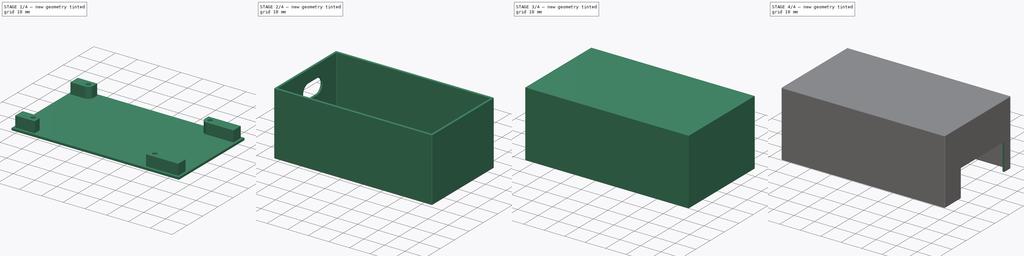
[diagram: build sequence overview — one tinted view per stage of 4, left to right]
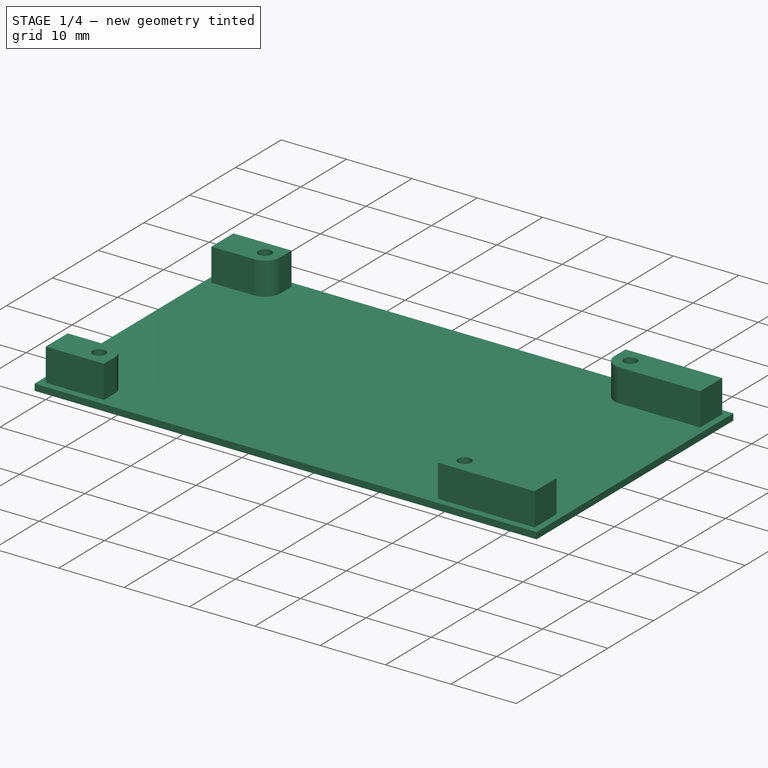
[diagram: stage 1 of 4 — iso view after this stage's code; geometry added in this stage tinted green]
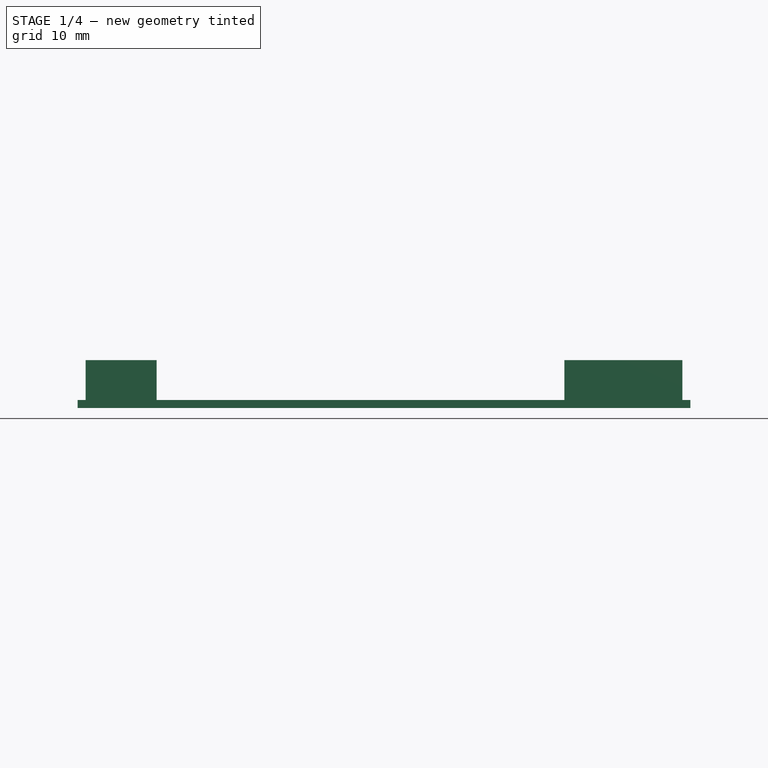
[diagram: stage 1 of 4 — front view after this stage's code; geometry added in this stage tinted green]
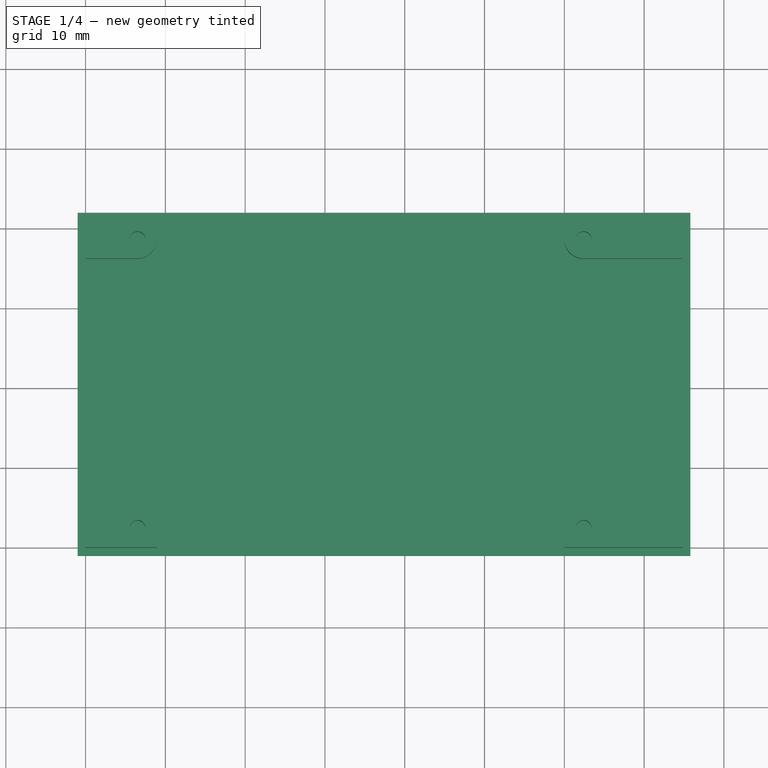
[diagram: stage 1 of 4 — top view after this stage's code; geometry added in this stage tinted green]
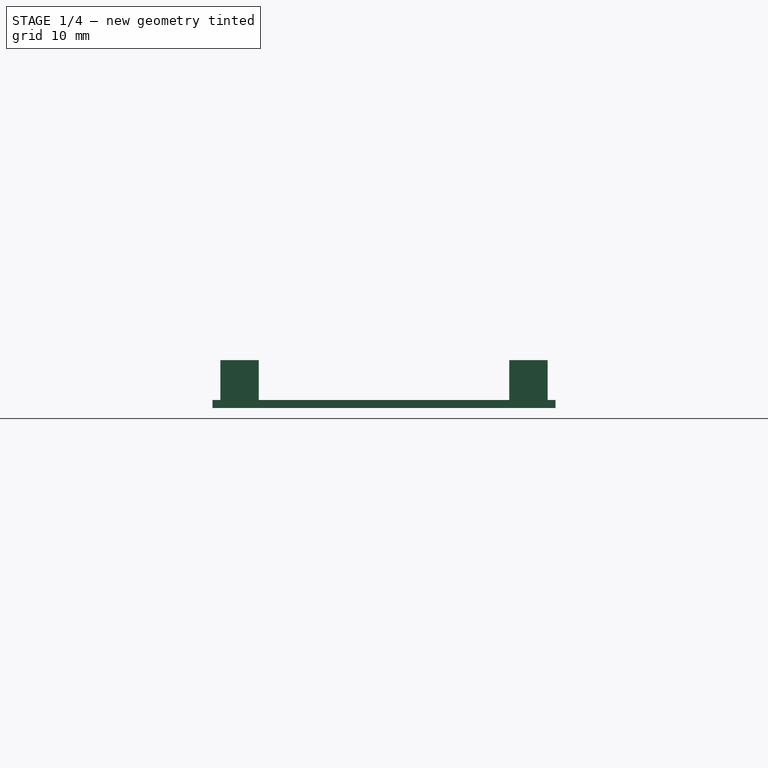
[diagram: stage 1 of 4 — right view after this stage's code; geometry added in this stage tinted green]
FCSTD DOCUMENT  (FreeCAD 0.22R38459 (Git))
Label: pcb_led_rf
License: All rights reserved
LicenseURL: https://en.wikipedia.org/wiki/All_rights_reserved
objects: Sketcher::SketchObject×8, PartDesign::Pad×5, PartDesign::Pocket×5, PartDesign::Fillet×2, PartDesign::SubShapeBinder×2, PartDesign::Body×2, App::Part×2, Spreadsheet::Sheet×1, PartDesign::ShapeBinder×1
note: 57 computed .brp shape members not serialized (recipe doc carries the construction recipe); baked Part::Feature solids carry a one-line shape summary decoded from their .brp

FEATURE [Sketcher::SketchObject] Sketch  label="components"
  ArcFitTolerance = 0
  AttachmentSupport = -> [XY_Plane001]
  FullyConstrained = true
  MakeInternals = false
  MapMode = 5
  expr: Constraints[13] = <<config>>.thickness
  expr: Constraints[14] = <<config>>.thickness
  expr: Constraints[15] = <<config>>.thickness
  expr: Constraints[16] = <<config>>.thickness
  expr: Constraints[34] = <<config>>.cable_space
  sketch-geometry (12):
    g0: LineSegment StartX=74.8 StartY=0 StartZ=0 EndX=74.8 EndY=41 EndZ=0
    g1: LineSegment StartX=74.8 StartY=41 StartZ=0 EndX=0 EndY=41 EndZ=0
    g2: LineSegment StartX=0 StartY=41 StartZ=0 EndX=0 EndY=0 EndZ=0
    g3: LineSegment StartX=75.8 StartY=42 StartZ=0 EndX=-1 EndY=42 EndZ=0
    g4: LineSegment StartX=-1 StartY=42 StartZ=0 EndX=-1 EndY=-1 EndZ=0
    g5: LineSegment StartX=-1 StartY=-1 StartZ=0 EndX=75.8 EndY=-1 EndZ=0
    g6: LineSegment StartX=75.8 StartY=-1 StartZ=0 EndX=75.8 EndY=42 EndZ=0
    g7: LineSegment StartX=74.8 StartY=0 StartZ=0 EndX=0 EndY=0 EndZ=0
    g8: Circle CenterX=6.5 CenterY=38.6 CenterZ=0 NormalX=0 NormalY=0 NormalZ=1 AngleXU=0 Radius=2.4
    g9: Circle CenterX=6.5 CenterY=2.4 CenterZ=0 NormalX=0 NormalY=0 NormalZ=1 AngleXU=0 Radius=2.4
    g10: Circle CenterX=62.4 CenterY=38.6 CenterZ=0 NormalX=0 NormalY=0 NormalZ=1 AngleXU=0 Radius=2.4
    g11: Circle CenterX=62.4 CenterY=2.4 CenterZ=0 NormalX=0 NormalY=0 NormalZ=1 AngleXU=0 Radius=2.4
  constraints (36):
    c: Coincident(g0,g1)
    c: Coincident(g1,g2)
    c: Horizontal(g1)
    c: Vertical(g0)
    c: Vertical(g2)
    c: Coincident(g3,g4)
    c: Coincident(g4,g5)
    c: Coincident(g5,g6)
    c: Coincident(g6,g3)
    c: Horizontal(g3)
    c: Horizontal(g5)
    c: Vertical(g4)
    c: Vertical(g6)
    c: DistanceY(g4,g2) = 1
    c: DistanceY(g1,g3) = 1
    c: DistanceX(g4,g2) = 1
    c: DistanceX(g0,g5) = 1
    c: Coincident(g7,g2)
    c: Coincident(g7,g0)
    c: Horizontal(g7)
    c: Coincident(g-1,g2)
    c: Distance(g8,g2) = 6.5
    c: Distance(g8,g1) = 2.4
    c: Equal(g8,g10)
    c: Equal(g8,g11)
    c: Equal(g8,g9)
    c: Horizontal(g8,g10)
    c: Vertical(g10,g11)
    c: Horizontal(g9,g11)
    c: Vertical(g8,g9)
    c: DistanceX(g9,g11) = 55.9
    c: DistanceY(g11,g10) = 36.2
    c: Tangent(g8,g1)
    c: Diameter(g8) = 4.8
    c: Distance(g11,g0) = 10
    c: Tangent(g7,g11)
FEATURE [Spreadsheet::Sheet] Spreadsheet  label="config"
  cells = A2='thickness; B2(thickness)==1 mm; A3='cable_space; B3(cable_space)==10 mm; A4='inside_z; B4(inside_z)==30 mm; A5='slack; B5(slack)==0.5 mm
FEATURE [PartDesign::Pad] Pad  label="base"
  Direction = (0,0,1)
  Length = 1
  Length2 = 10
  Profile = -> Sketch [Edge6,Edge7,Edge8,Edge5]
  ReferenceAxis = -> Sketch [N_Axis]
  Refine = true
  Reversed = true
  Suppressed = false
  Type = 0
  expr: Length = <<config>>.thickness
FEATURE [Sketcher::SketchObject] Sketch001
  ArcFitTolerance = 1e-06
  AttachmentSupport = -> [Pad]
  ExternalGeometry = -> [Sketch]
  FullyConstrained = true
  MakeInternals = false
  MapMode = 5
  sketch-geometry (20):
    g0: LineSegment StartX=8.9 StartY=2.4 StartZ=0 EndX=8.9 EndY=0 EndZ=0
    g1: LineSegment StartX=8.9 StartY=0 StartZ=0 EndX=0 EndY=0 EndZ=0
    g2: LineSegment StartX=0 StartY=0 StartZ=0 EndX=0 EndY=4.8 EndZ=0
    g3: LineSegment StartX=0 StartY=4.8 StartZ=0 EndX=6.5 EndY=4.8 EndZ=0
    g4: ArcOfCircle CenterX=6.5 CenterY=2.4 CenterZ=0 NormalX=0 NormalY=0 NormalZ=1 AngleXU=0 Radius=2.4 StartAngle=1e-16 EndAngle=1.5708
    g5: LineSegment StartX=60 StartY=2.4 StartZ=0 EndX=60 EndY=0 EndZ=0
    g6: LineSegment StartX=60 StartY=0 StartZ=0 EndX=74.8 EndY=0 EndZ=0
    g7: LineSegment StartX=74.8 StartY=0 StartZ=0 EndX=74.8 EndY=4.8 EndZ=0
    g8: LineSegment StartX=74.8 StartY=4.8 StartZ=0 EndX=62.4 EndY=4.8 EndZ=0
    g9: ArcOfCircle CenterX=62.4 CenterY=2.4 CenterZ=0 NormalX=0 NormalY=0 NormalZ=1 AngleXU=0 Radius=2.4 StartAngle=1.5708 EndAngle=3.14159
    g10: LineSegment StartX=60 StartY=38.6 StartZ=0 EndX=60 EndY=41 EndZ=0
    g11: LineSegment StartX=60 StartY=41 StartZ=0 EndX=74.8 EndY=41 EndZ=0
    g12: LineSegment StartX=74.8 StartY=41 StartZ=0 EndX=74.8 EndY=36.2 EndZ=0
    g13: LineSegment StartX=74.8 StartY=36.2 StartZ=0 EndX=62.4 EndY=36.2 EndZ=0
    g14: ArcOfCircle CenterX=62.4 CenterY=38.6 CenterZ=0 NormalX=0 NormalY=0 NormalZ=1 AngleXU=0 Radius=2.4 StartAngle=3.14159 EndAngle=4.71239
    g15: LineSegment StartX=6.5 StartY=36.2 StartZ=0 EndX=0 EndY=36.2 EndZ=0
    g16: LineSegment StartX=0 StartY=36.2 StartZ=0 EndX=0 EndY=41 EndZ=0
    g17: LineSegment StartX=0 StartY=41 StartZ=0 EndX=8.9 EndY=41 EndZ=0
    g18: LineSegment StartX=8.9 StartY=41 StartZ=0 EndX=8.9 EndY=38.6 EndZ=0
    g19: ArcOfCircle CenterX=6.5 CenterY=38.6 CenterZ=0 NormalX=0 NormalY=0 NormalZ=1 AngleXU=0 Radius=2.4 StartAngle=4.71239 EndAngle=6.28319
  constraints (56):
    c: PointOnObject(g0,g-1)
    c: Coincident(g0,g1)
    c: Coincident(g1,g-1)
    c: Coincident(g1,g2)
    c: PointOnObject(g2,g-2)
    c: Coincident(g2,g3)
    c: Horizontal(g3)
    c: Vertical(g0)
    c: Coincident(g4,g-6)
    c: Coincident(g4,g3)
    c: Coincident(g4,g0)
    c: Vertical(g4,g3)
    c: Horizontal(g4,g0)
    c: PointOnObject(g3,g-6)
    c: Vertical(g5)
    c: Coincident(g5,g6)
    c: Horizontal(g6)
    c: Coincident(g6,g7)
    c: Vertical(g7)
    c: Coincident(g7,g8)
    c: Horizontal(g8)
    c: Coincident(g9,g-5)
    c: Coincident(g9,g5)
    c: Coincident(g9,g8)
    c: Vertical(g9,g8)
    c: Horizontal(g9,g5)
    c: Coincident(g-7,g6)
    c: PointOnObject(g8,g-5)
    c: Vertical(g10)
    c: Coincident(g10,g11)
    c: Coincident(g11,g-7)
    c: Coincident(g11,g12)
    c: Coincident(g12,g13)
    c: Horizontal(g13)
    c: Coincident(g14,g-4)
    c: Coincident(g14,g10)
    c: Coincident(g14,g13)
    c: Horizontal(g11)
    c: Vertical(g12)
    c: Horizontal(g10,g14)
    c: Vertical(g13,g14)
    c: PointOnObject(g13,g-4)
    c: Horizontal(g15)
    c: Coincident(g15,g16)
    c: Vertical(g16)
    c: Coincident(g16,g17)
    c: Horizontal(g17)
    c: Coincident(g17,g18)
    c: Vertical(g18)
    c: Coincident(g19,g-3)
    c: Coincident(g19,g15)
    c: Coincident(g19,g18)
    c: Coincident(g16,g-8)
    c: Horizontal(g19,g18)
    c: Vertical(g19,g15)
    c: PointOnObject(g15,g-3)
FEATURE [PartDesign::Pad] Pad001  label="PCB_holder"
  BaseFeature = -> Pad
  Direction = (0,0,1)
  Length = 5
  Length2 = 10
  Profile = -> Sketch001
  ReferenceAxis = -> Sketch001 [N_Axis]
  Refine = true
  Suppressed = false
  Type = 0
FEATURE [Sketcher::SketchObject] Sketch002
  ArcFitTolerance = 1e-06
  AttachmentSupport = -> [Pad001]
  ExternalGeometry = -> [Sketch]
  FullyConstrained = true
  MakeInternals = false
  MapMode = 5
  Placement = pos=(0,0,5) rot=(0,0,1;0rad)
  sketch-geometry (4):
    g0: Circle CenterX=6.5 CenterY=38.6 CenterZ=0 NormalX=0 NormalY=0 NormalZ=1 AngleXU=0 Radius=1
    g1: Circle CenterX=62.4 CenterY=38.6 CenterZ=0 NormalX=0 NormalY=0 NormalZ=1 AngleXU=0 Radius=1
    g2: Circle CenterX=6.5 CenterY=2.4 CenterZ=0 NormalX=0 NormalY=0 NormalZ=1 AngleXU=0 Radius=1
    g3: Circle CenterX=62.4 CenterY=2.4 CenterZ=0 NormalX=0 NormalY=0 NormalZ=1 AngleXU=0 Radius=1
  constraints (8):
    c: Coincident(g0,g-3)
    c: Coincident(g1,g-6)
    c: Diameter(g0) = 2
    c: Equal(g0,g1)
    c: Equal(g0,g2)
    c: Equal(g0,g3)
    c: Coincident(g-4,g2)
    c: Coincident(g-5,g3)
FEATURE [PartDesign::Pocket] Pocket
  BaseFeature = -> Pad001
  Direction = (0,0,-1)
  Length = 5.5
  Length2 = 5
  Profile = -> Sketch002
  ReferenceAxis = -> Sketch002 [N_Axis]
  Refine = true
  Suppressed = false
  Type = 0
  expr: Length = <<PCB_holder>>.Length + <<config>>.thickness / 2
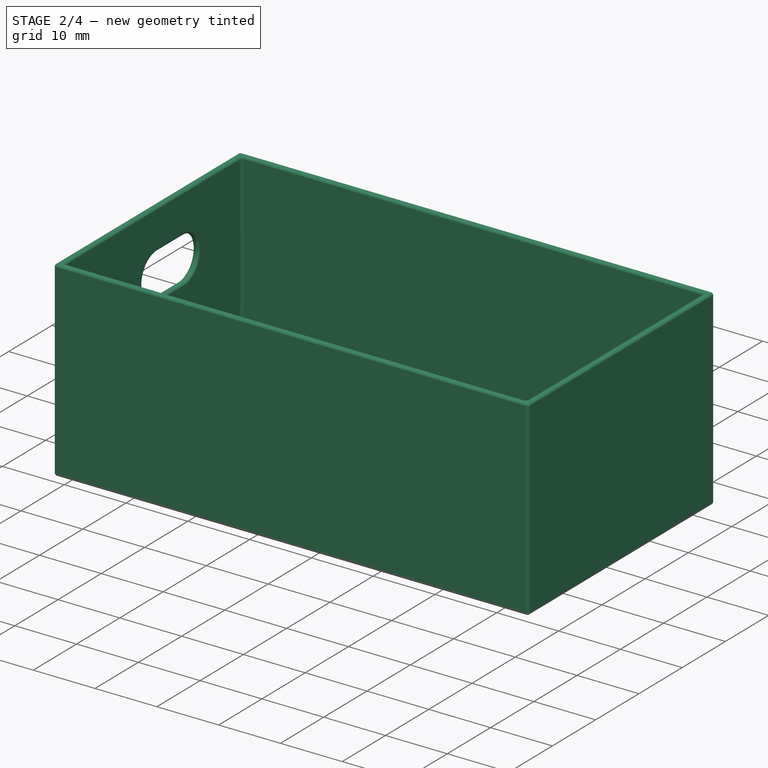
[diagram: stage 2 of 4 — iso view after this stage's code; geometry added in this stage tinted green]
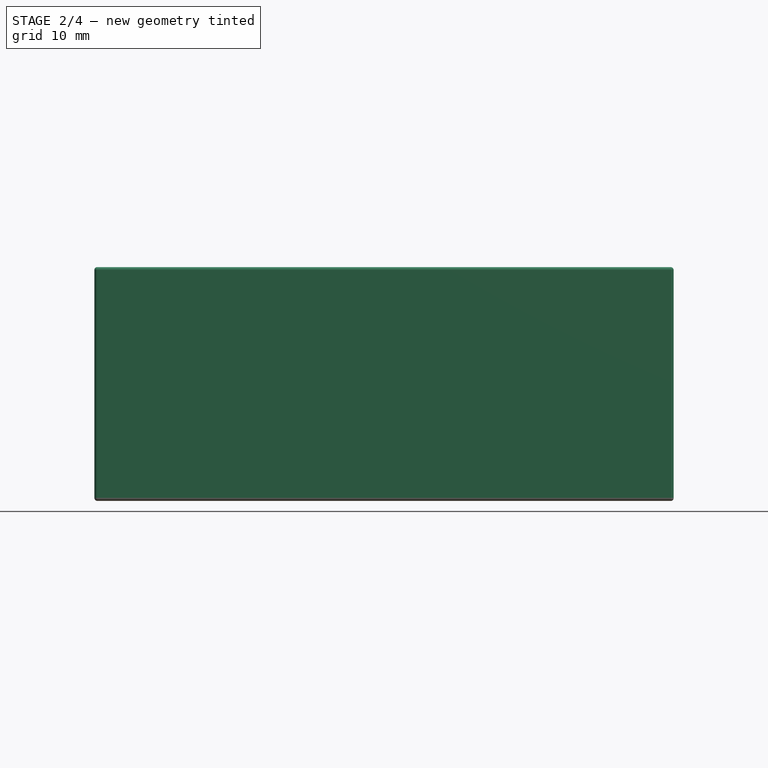
[diagram: stage 2 of 4 — front view after this stage's code; geometry added in this stage tinted green]
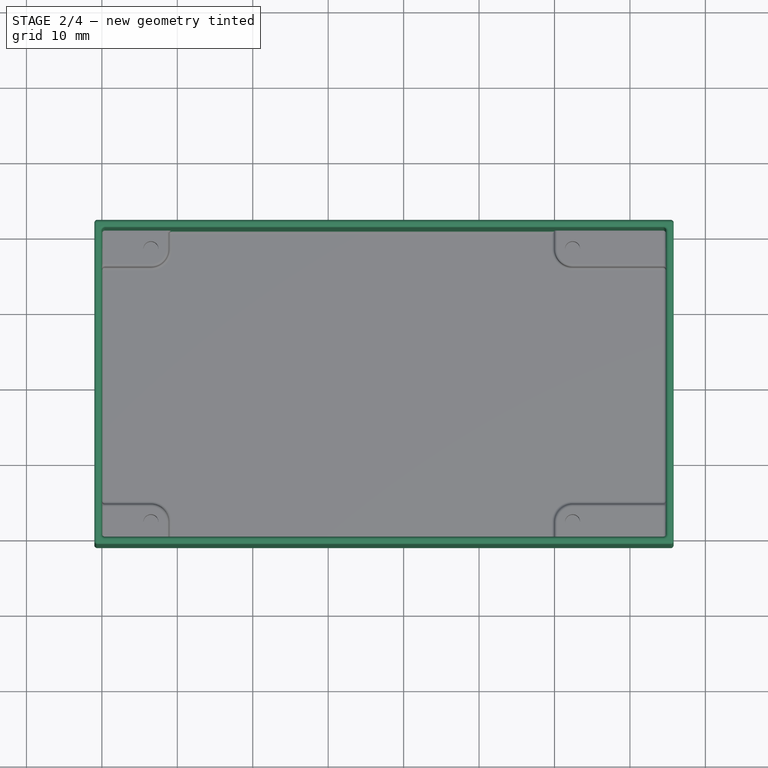
[diagram: stage 2 of 4 — top view after this stage's code; geometry added in this stage tinted green]
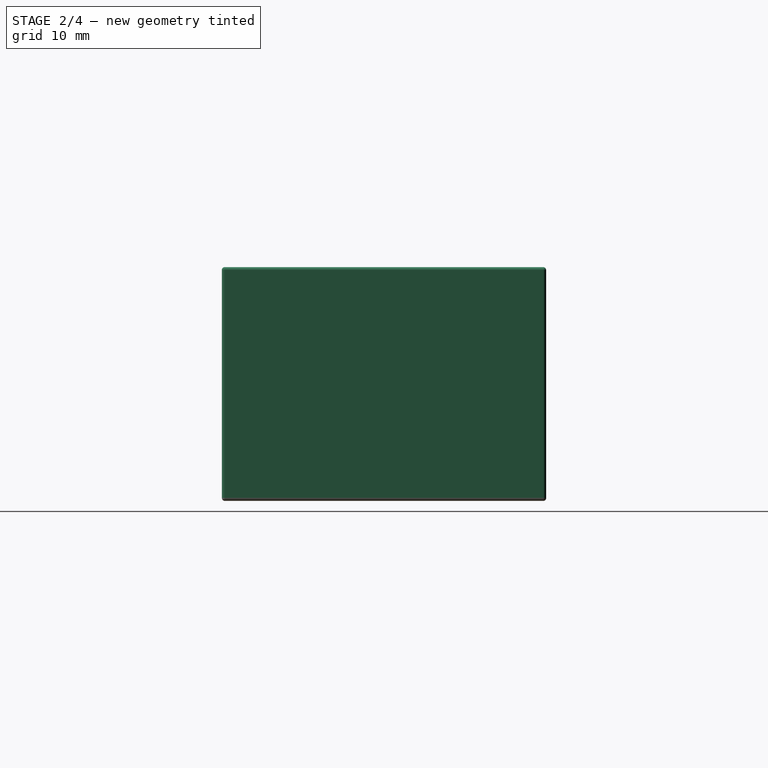
[diagram: stage 2 of 4 — right view after this stage's code; geometry added in this stage tinted green]
FEATURE [PartDesign::Pad] Pad002  label="walls"
  BaseFeature = -> Pocket
  Direction = (0,0,1)
  Length = 30
  Length2 = 10
  Profile = -> Sketch [Edge7,Edge4,Edge3,Edge6,Edge2,Edge5,Edge1,Edge8]
  ReferenceAxis = -> Sketch [N_Axis]
  Refine = true
  Suppressed = false
  Type = 0
  expr: Length = <<config>>.inside_z
FEATURE [Sketcher::SketchObject] Sketch003
  ArcFitTolerance = 1e-06
  AttachmentSupport = -> [Pad002]
  ExternalGeometry = -> [Sketch]
  FullyConstrained = true
  MakeInternals = false
  MapMode = 5
  Placement = pos=(-1,0,0) rot=(0.57735,-0.57735,-0.57735;2.0944rad)
  sketch-geometry (9):
    g0: ArcOfCircle CenterX=-27.6 CenterY=20 CenterZ=0 NormalX=0 NormalY=0 NormalZ=1 AngleXU=0 Radius=3.5 StartAngle=1.5708 EndAngle=4.71239
    g1: ArcOfCircle CenterX=-21.6 CenterY=20 CenterZ=0 NormalX=0 NormalY=0 NormalZ=1 AngleXU=0 Radius=3.5 StartAngle=4.71239 EndAngle=7.85398
    g2: LineSegment StartX=-27.6 StartY=23.5 StartZ=0 EndX=-21.6 EndY=23.5 EndZ=0
    g3: LineSegment StartX=-27.6 StartY=16.5 StartZ=0 EndX=-21.6 EndY=16.5 EndZ=0
    g4: LineSegment [constr] StartX=-24.6 StartY=20 StartZ=0 EndX=-24.6 EndY=0 EndZ=0
    g5: LineSegment [constr] StartX=-27.6 StartY=20 StartZ=0 EndX=-24.6 EndY=20 EndZ=0
    g6: LineSegment [constr] StartX=-24.6 StartY=20 StartZ=0 EndX=-21.6 EndY=20 EndZ=0
    g7: GeomPoint [constr] X=-31.1 Y=20 Z=0
    g8: GeomPoint [constr] X=-18.1 Y=20 Z=0
  constraints (24):
    c: Tangent(g0,g2) = 1.5708
    c: Tangent(g0,g3) = -1.5708
    c: Tangent(g1,g2) = 1.5708
    c: Tangent(g1,g3) = -1.5708
    c: Equal(g0,g1)
    c: Horizontal(g3)
    c: PointOnObject(g4,g-1)
    c: Vertical(g4)
    c: Coincident(g5,g0)
    c: PointOnObject(g5,g4)
    c: Horizontal(g5)
    c: PointOnObject(g6,g4)
    c: Coincident(g6,g1)
    c: Horizontal(g6)
    c: Equal(g5,g6)
    c: PointOnObject(g4,g6)
    c: Distance(g-3,g4) = 16.4
    c: Distance(g3,g2) = 7
    c: PointOnObject(g7,g0)
    c: PointOnObject(g8,g1)
    c: Horizontal(g7,g0)
    c: Horizontal(g1,g8)
    c: DistanceX(g7,g8) = 13
    c: DistanceY(g4,g4) = 20
FEATURE [PartDesign::Pocket] Pocket001  label="usb_hole"
  BaseFeature = -> Pad002
  Direction = (1,0,0)
  Length = 5
  Length2 = 5
  Profile = -> Sketch003
  ReferenceAxis = -> Sketch003 [N_Axis]
  Refine = true
  Suppressed = false
  Type = 2
FEATURE [PartDesign::Fillet] Fillet
  Base = -> Pocket001 [Face17,Face14,Face4,Face6,Face26,Face31,Face24,Face5,Face1,Face2,Face3,Face12,Face28,Face30,Face32]
  BaseFeature = -> Pocket001
  Radius = 0.4
  Refine = true
  SupportTransform = false
  Suppressed = false
  UseAllEdges = false
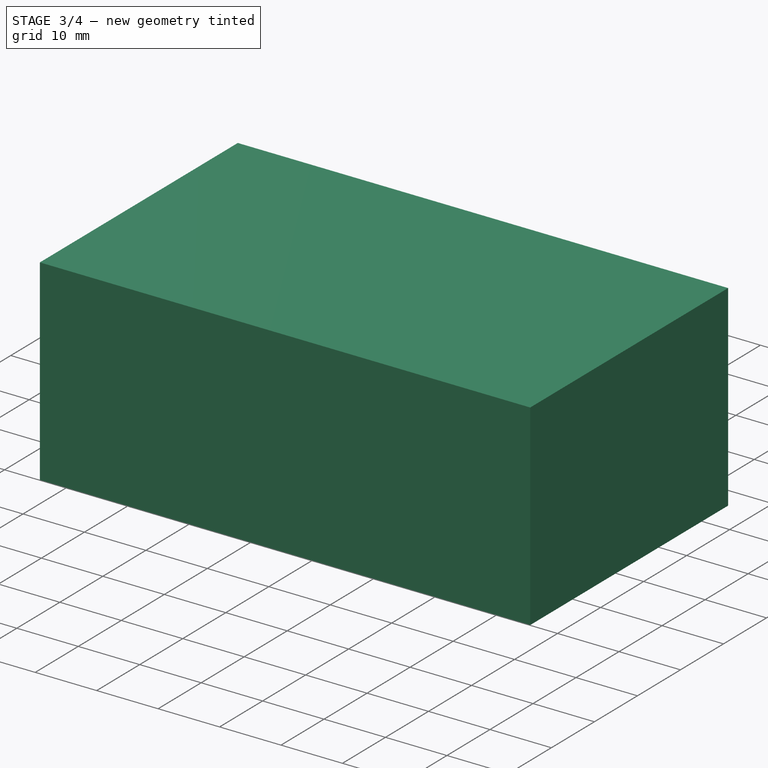
[diagram: stage 3 of 4 — iso view after this stage's code; geometry added in this stage tinted green]
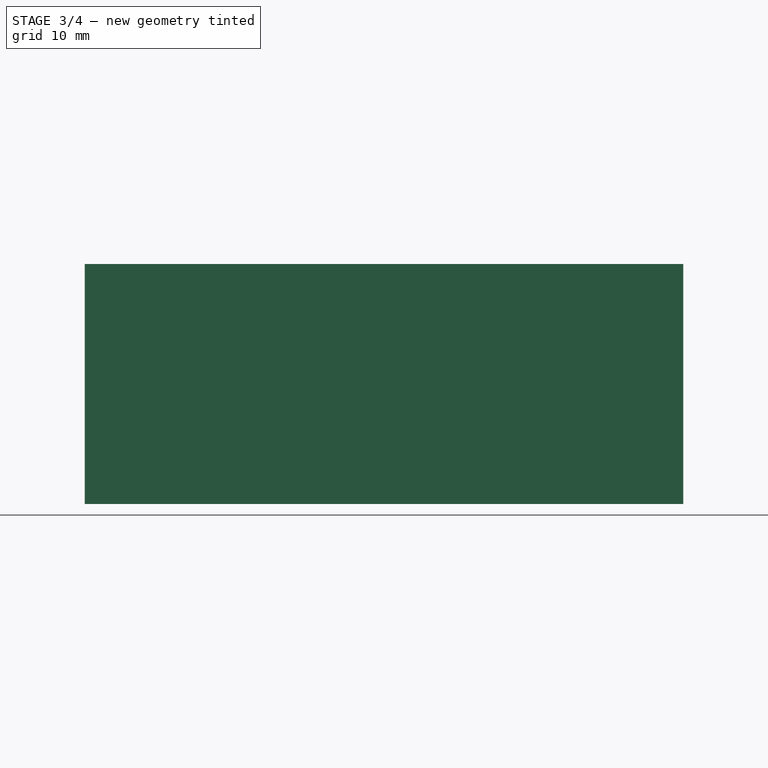
[diagram: stage 3 of 4 — front view after this stage's code; geometry added in this stage tinted green]
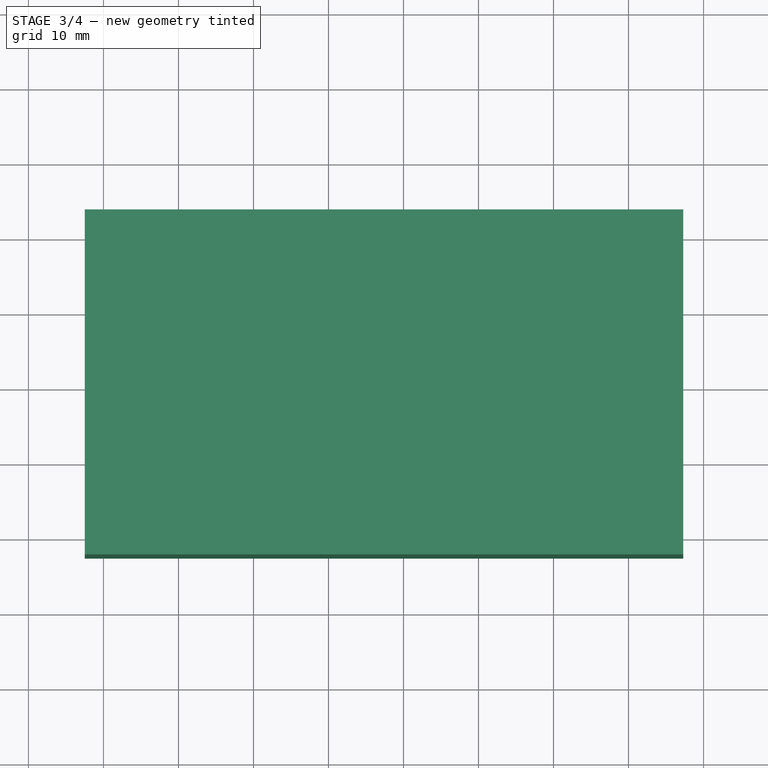
[diagram: stage 3 of 4 — top view after this stage's code; geometry added in this stage tinted green]
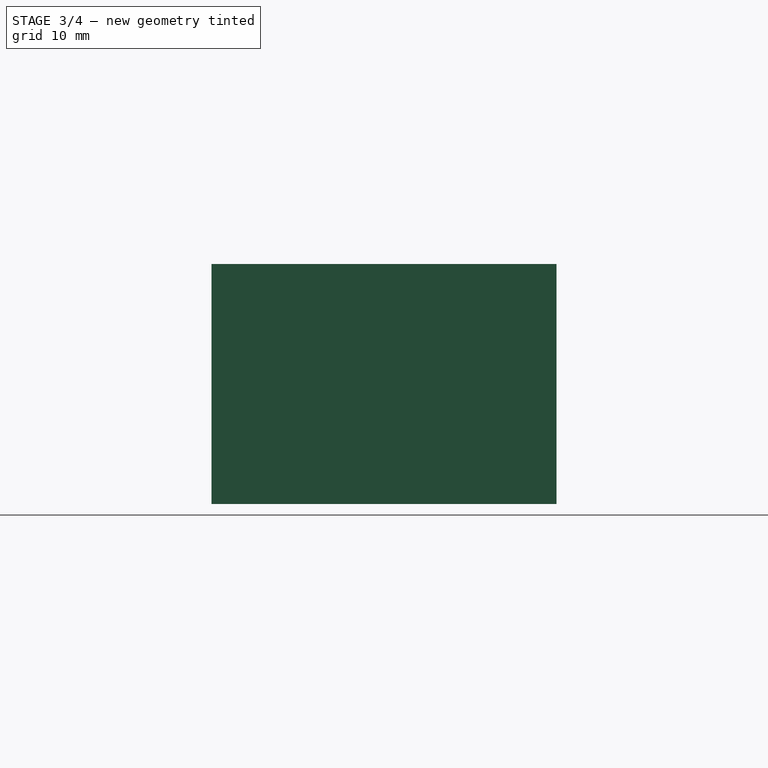
[diagram: stage 3 of 4 — right view after this stage's code; geometry added in this stage tinted green]
FEATURE [PartDesign::ShapeBinder] ShapeBinder
  Placement = pos=(0,0,30) rot=(0,0,1;0rad)
  Support = -> [Pocket001]
  TraceSupport = false
FEATURE [Sketcher::SketchObject] Sketch004
  ArcFitTolerance = 1e-06
  AttachmentSupport = -> [ShapeBinder]
  ExternalGeometry = -> [ShapeBinder]
  FullyConstrained = true
  MakeInternals = false
  MapMode = 5
  Placement = pos=(0,0,30) rot=(0,0,1;0rad)
  expr: Constraints[10] = <<config>>.slack
  expr: Constraints[11] = <<config>>.slack
  expr: Constraints[20] = <<config>>.thickness
  expr: Constraints[21] = <<config>>.thickness
  expr: Constraints[22] = <<config>>.thickness
  expr: Constraints[23] = <<config>>.thickness
  expr: Constraints[8] = <<config>>.slack
  expr: Constraints[9] = <<config>>.slack
  sketch-geometry (8):
    g0: LineSegment StartX=76.3 StartY=42.5 StartZ=0 EndX=-1.5 EndY=42.5 EndZ=0
    g1: LineSegment StartX=-1.5 StartY=42.5 StartZ=0 EndX=-1.5 EndY=-1.5 EndZ=0
    g2: LineSegment StartX=-1.5 StartY=-1.5 StartZ=0 EndX=76.3 EndY=-1.5 EndZ=0
    g3: LineSegment StartX=76.3 StartY=-1.5 StartZ=0 EndX=76.3 EndY=42.5 EndZ=0
    g4: LineSegment StartX=77.3 StartY=43.5 StartZ=0 EndX=-2.5 EndY=43.5 EndZ=0
    g5: LineSegment StartX=-2.5 StartY=43.5 StartZ=0 EndX=-2.5 EndY=-2.5 EndZ=0
    g6: LineSegment StartX=-2.5 StartY=-2.5 StartZ=0 EndX=77.3 EndY=-2.5 EndZ=0
    g7: LineSegment StartX=77.3 StartY=-2.5 StartZ=0 EndX=77.3 EndY=43.5 EndZ=0
  constraints (24):
    c: Coincident(g0,g1)
    c: Coincident(g1,g2)
    c: Coincident(g2,g3)
    c: Coincident(g3,g0)
    c: Horizontal(g0)
    c: Horizontal(g2)
    c: Vertical(g1)
    c: Vertical(g3)
    c: Distance(g-6,g1) = 0.5
    c: Distance(g0,g-3) = 0.5
    c: Distance(g-5,g3) = 0.5
    c: Distance(g-4,g2) = 0.5
    c: Coincident(g4,g5)
    c: Coincident(g5,g6)
    c: Coincident(g6,g7)
    c: Coincident(g7,g4)
    c: Horizontal(g4)
    c: Horizontal(g6)
    c: Vertical(g5)
    c: Vertical(g7)
    c: Distance(g0,g4) = 1
    c: Distance(g7,g3) = 1
    c: Distance(g5,g1) = 1
    c: Distance(g2,g6) = 1
FEATURE [PartDesign::Pad] Pad003  label="cover"
  Direction = (0,0,1)
  Length = 1
  Length2 = 10
  Placement = pos=(0,0,30) rot=(0,0,1;0rad)
  Profile = -> Sketch004 [Edge8,Edge5,Edge7,Edge6]
  ReferenceAxis = -> Sketch004 [N_Axis]
  Refine = true
  Suppressed = false
  Type = 0
  expr: Length = <<config>>.thickness
FEATURE [PartDesign::Pad] Pad004  label="outside_box001"
  BaseFeature = -> Pad003
  Direction = (0,0,1)
  Length = 31
  Length2 = 10
  Placement = pos=(0,0,30) rot=(0,0,1;0rad)
  Profile = -> Sketch004
  ReferenceAxis = -> Sketch004 [N_Axis]
  Refine = true
  Reversed = true
  Suppressed = false
  Type = 0
  expr: Length = <<config>>.inside_z + <<config>>.thickness
FEATURE [Sketcher::SketchObject] Sketch006
  ArcFitTolerance = 1e-06
  AttachmentSupport = -> [Fillet]
  ExternalGeometry = -> [Sketch]
  FullyConstrained = true
  MakeInternals = false
  MapMode = 5
  Placement = pos=(75.8,0,0) rot=(0.57735,0.57735,0.57735;2.0944rad)
  expr: Constraints[10] = 2 mm + <<PCB_holder>>.Length
  expr: Constraints[11] = 7.5 mm + +<<PCB_holder>>.Length
  sketch-geometry (4):
    g0: LineSegment StartX=39.2 StartY=12.5 StartZ=0 EndX=8.7 EndY=12.5 EndZ=0
    g1: LineSegment StartX=8.7 StartY=12.5 StartZ=0 EndX=8.7 EndY=7 EndZ=0
    g2: LineSegment StartX=8.7 StartY=7 StartZ=0 EndX=39.2 EndY=7 EndZ=0
    g3: LineSegment StartX=39.2 StartY=7 StartZ=0 EndX=39.2 EndY=12.5 EndZ=0
  constraints (12):
    c: Coincident(g0,g1)
    c: Coincident(g1,g2)
    c: Coincident(g2,g3)
    c: Coincident(g3,g0)
    c: Horizontal(g0)
    c: Horizontal(g2)
    c: Vertical(g1)
    c: Vertical(g3)
    c: DistanceX(g0,g0) = 30.5
    c: Distance(g-3,g3) = 1.8
    c: Distance(g-1,g2) = 7
    c: Distance(g0,g-1) = 12.5
FEATURE [PartDesign::Pocket] Pocket003  label="cables_inside"
  BaseFeature = -> Fillet
  Direction = (-1,0,0)
  Length = 5
  Length2 = 5
  Profile = -> Sketch006
  ReferenceAxis = -> Sketch006 [N_Axis]
  Refine = true
  Suppressed = false
  Type = 2
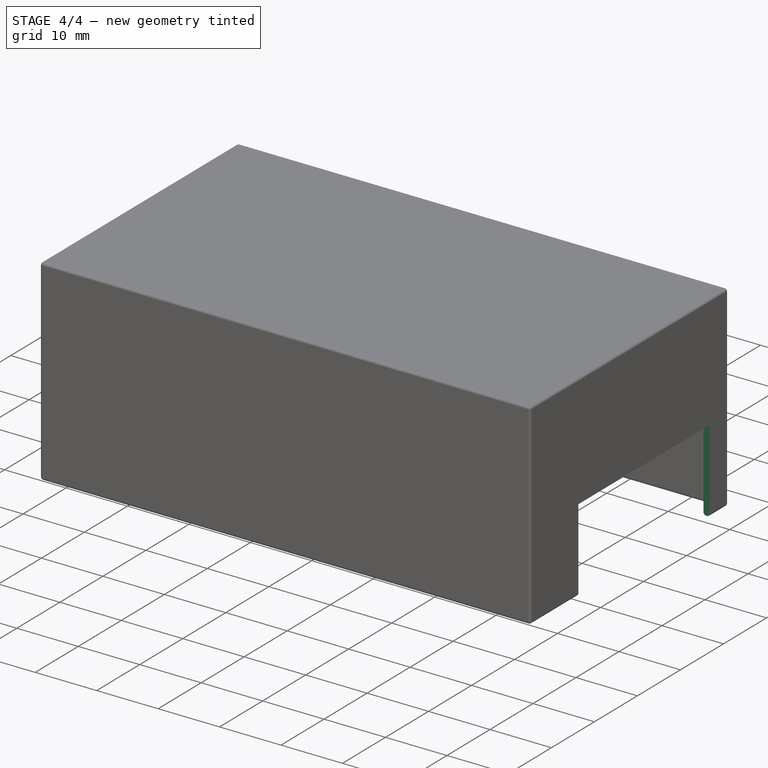
[diagram: stage 4 of 4 — iso view after this stage's code; geometry added in this stage tinted green]
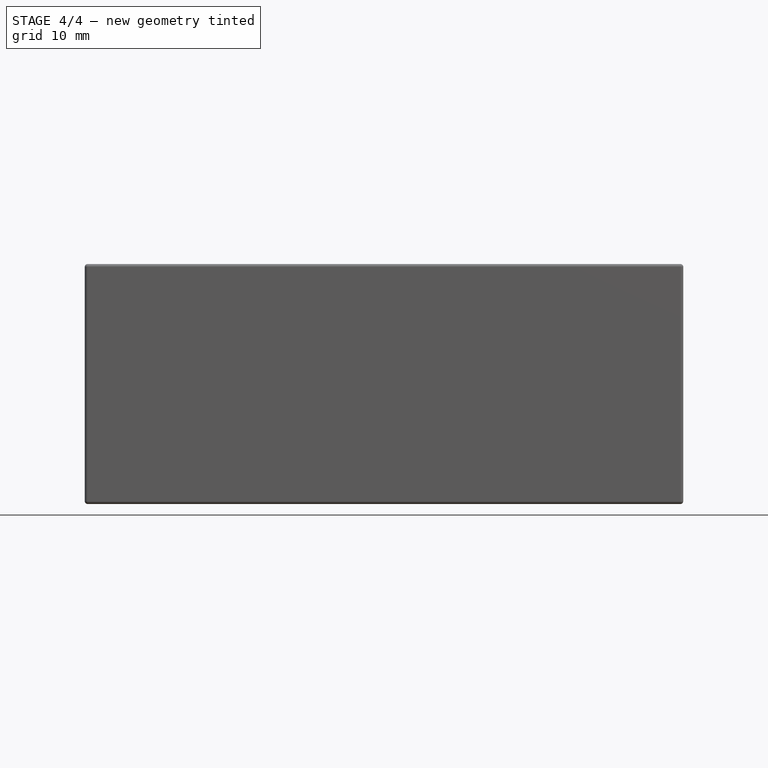
[diagram: stage 4 of 4 — front view after this stage's code; geometry added in this stage tinted green]
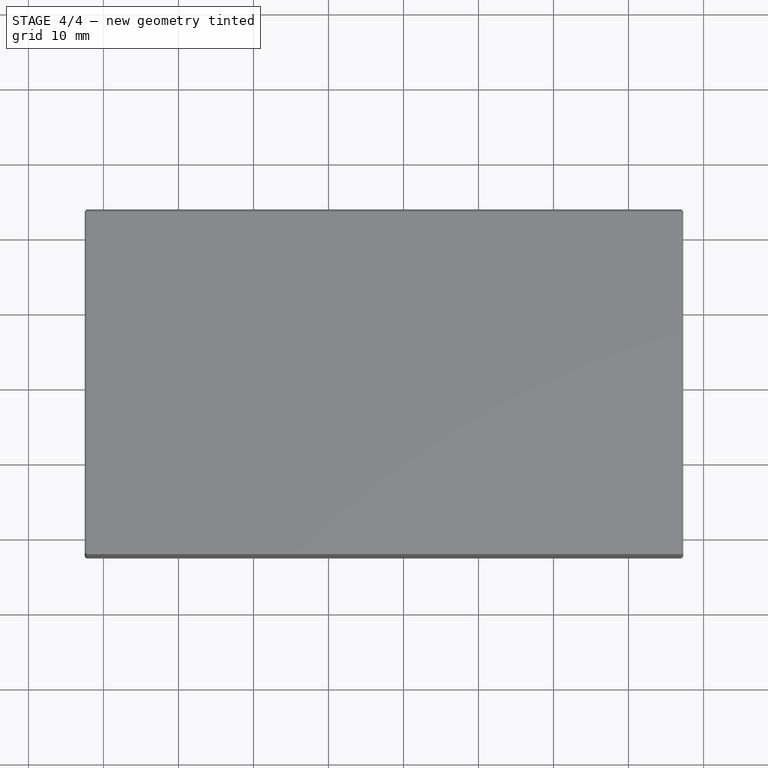
[diagram: stage 4 of 4 — top view after this stage's code; geometry added in this stage tinted green]
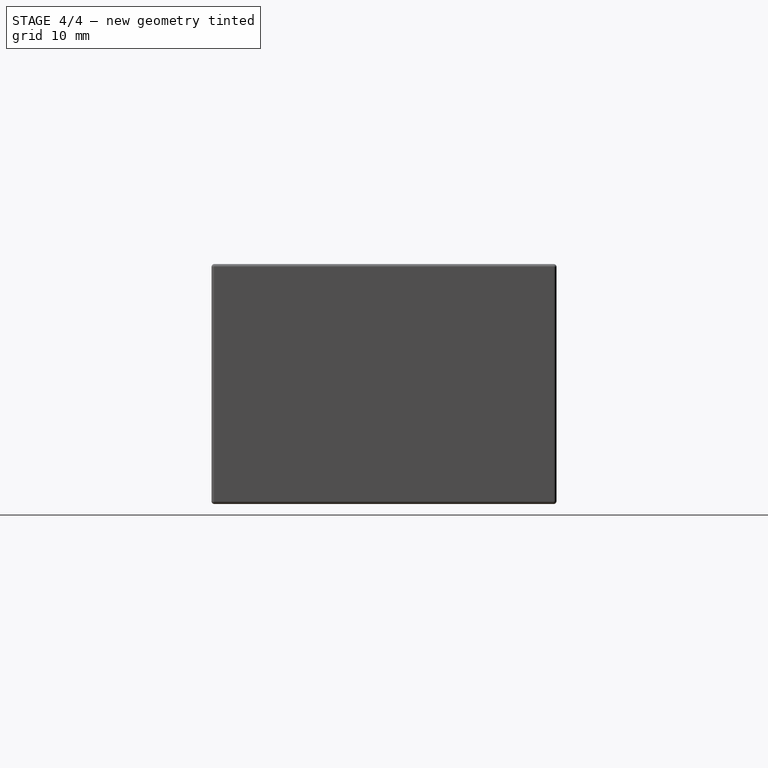
[diagram: stage 4 of 4 — right view after this stage's code; geometry added in this stage tinted green]
FEATURE [PartDesign::SubShapeBinder] Binder  label="usb_hole_binder"
  BindCopyOnChange = 0
  BindMode = 0
  ClaimChildren = false
  Context = -> Part001 [Body001.Binder.]
  Fuse = false
  MakeFace = true
  OffsetFill = false
  OffsetIntersection = false
  OffsetJoinType = 0
  OffsetOpenResult = false
  PartialLoad = false
  Refine = true
  Relative = true
  Support = -> [Part[Body.Sketch003.Edge4,Body.Sketch003.Edge3,Body.Sketch003.Edge2,Body.Sketch003.Edge1]]
  _Version = 2
FEATURE [Sketcher::SketchObject] Sketch005
  ArcFitTolerance = 1e-06
  AttachmentSupport = -> [Pad004]
  ExternalGeometry = -> [Binder]
  FullyConstrained = true
  MakeInternals = false
  MapMode = 5
  Placement = pos=(-2.5,0,30) rot=(0.57735,-0.57735,-0.57735;2.0944rad)
  sketch-geometry (4):
    g0: ArcOfCircle CenterX=-27.6 CenterY=-10 CenterZ=0 NormalX=0 NormalY=0 NormalZ=1 AngleXU=0 Radius=3.5 StartAngle=1.5708 EndAngle=4.71239
    g1: ArcOfCircle CenterX=-21.6 CenterY=-10 CenterZ=0 NormalX=0 NormalY=0 NormalZ=1 AngleXU=0 Radius=3.5 StartAngle=4.71239 EndAngle=7.85398
    g2: LineSegment StartX=-27.6 StartY=-6.5 StartZ=0 EndX=-21.6 EndY=-6.5 EndZ=0
    g3: LineSegment StartX=-27.6 StartY=-13.5 StartZ=0 EndX=-21.6 EndY=-13.5 EndZ=0
  constraints (7):
    c: Tangent(g0,g2) = 1.5708
    c: Tangent(g0,g3) = -1.5708
    c: Tangent(g1,g2) = 1.5708
    c: Tangent(g1,g3) = -1.5708
    c: Coincident(g0,g-6)
    c: Coincident(g-4,g1)
    c: Tangent(g2,g-3)
FEATURE [PartDesign::Pocket] Pocket002  label="usb_hole_outside"
  BaseFeature = -> Pad004
  Direction = (1,0,0)
  Length = 5
  Length2 = 5
  Placement = pos=(0,0,30) rot=(0,0,1;0rad)
  Profile = -> Sketch005
  ReferenceAxis = -> Sketch005 [N_Axis]
  Refine = true
  Suppressed = false
  Type = 2
FEATURE [PartDesign::Fillet] Fillet001
  Base = -> Pocket002 [Face10,Face3,Face4,Face5,Face2,Face1,Edge27,Edge29,Edge28,Edge26]
  BaseFeature = -> Pocket002
  Placement = pos=(0,0,30) rot=(0,0,1;0rad)
  Radius = 0.4
  Refine = true
  SupportTransform = false
  Suppressed = false
  UseAllEdges = false
FEATURE [PartDesign::Body] Body  label="inside_box_body"
  AllowCompound = false
  Group = -> [Pad,Sketch,Sketch001,Pad001,Sketch002,Pocket,Pad002,Sketch003,Pocket001,Fillet,Sketch006,Pocket003]
  Origin = -> Origin001
  Tip = -> Pocket003
FEATURE [App::Part] Part  label="inside_box"
  Group = -> [Body]
  Origin = -> Origin
FEATURE [PartDesign::SubShapeBinder] Binder001  label="cables_binder"
  BindCopyOnChange = 0
  BindMode = 0
  ClaimChildren = false
  Context = -> Part001 [Body001.Binder001.]
  Fuse = false
  MakeFace = true
  OffsetFill = false
  OffsetIntersection = false
  OffsetJoinType = 0
  OffsetOpenResult = false
  PartialLoad = false
  Refine = true
  Relative = true
  Support = -> [Part[Body.Sketch006.Edge3,Body.Sketch006.Edge1,Body.Sketch006.Edge2,Body.Sketch006.Edge4]]
  _Version = 2
FEATURE [Sketcher::SketchObject] Sketch007
  ArcFitTolerance = 1e-06
  AttachmentSupport = -> [Fillet001]
  ExternalGeometry = -> [Binder001,Fillet001]
  FullyConstrained = true
  MakeInternals = false
  MapMode = 5
  Placement = pos=(77.3,0,30) rot=(0.57735,0.57735,0.57735;2.0944rad)
  sketch-geometry (4):
    g0: LineSegment StartX=39.2 StartY=-17.5 StartZ=0 EndX=8.7 EndY=-17.5 EndZ=0
    g1: LineSegment StartX=8.7 StartY=-17.5 StartZ=0 EndX=8.7 EndY=-31 EndZ=0
    g2: LineSegment StartX=39.2 StartY=-31 StartZ=0 EndX=39.2 EndY=-17.5 EndZ=0
    g3: LineSegment StartX=8.7 StartY=-31 StartZ=0 EndX=39.2 EndY=-31 EndZ=0
  constraints (10):
    c: Coincident(g0,g1)
    c: Coincident(g2,g0)
    c: Vertical(g1)
    c: Vertical(g2)
    c: Coincident(g0,g-4)
    c: PointOnObject(g1,g-6)
    c: PointOnObject(g2,g-6)
    c: Coincident(g0,g-5)
    c: Coincident(g3,g1)
    c: Coincident(g3,g2)
FEATURE [PartDesign::Pocket] Pocket004  label="cables_outside"
  BaseFeature = -> Fillet001
  Direction = (-1,0,0)
  Length = 5
  Length2 = 5
  Placement = pos=(0,0,30) rot=(0,0,1;0rad)
  Profile = -> Sketch007
  ReferenceAxis = -> Sketch007 [N_Axis]
  Refine = true
  Suppressed = false
  Type = 2
FEATURE [PartDesign::Body] Body001  label="outside_box_body"
  AllowCompound = false
  Group = -> [ShapeBinder,Sketch004,Pad003,Pad004,Binder,Sketch005,Pocket002,Fillet001,Binder001,Sketch007,Pocket004]
  Origin = -> Origin003
  Tip = -> Pocket004
FEATURE [App::Part] Part001  label="outside_box"
  Group = -> [Body001]
  Origin = -> Origin002
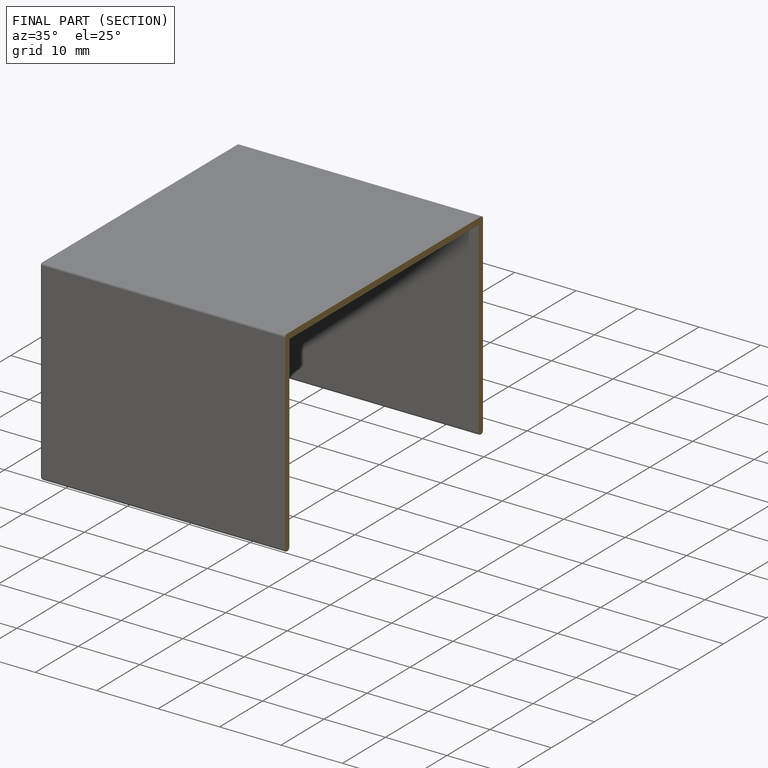
[diagram: finished part — half-section view (interior)]
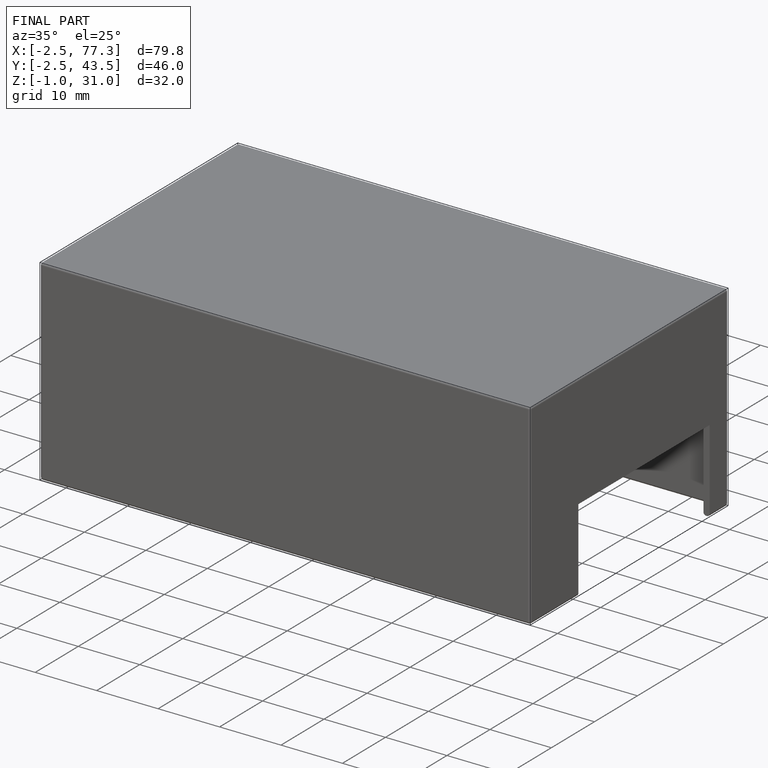
[diagram: finished part — iso view with bounding-box wireframe]
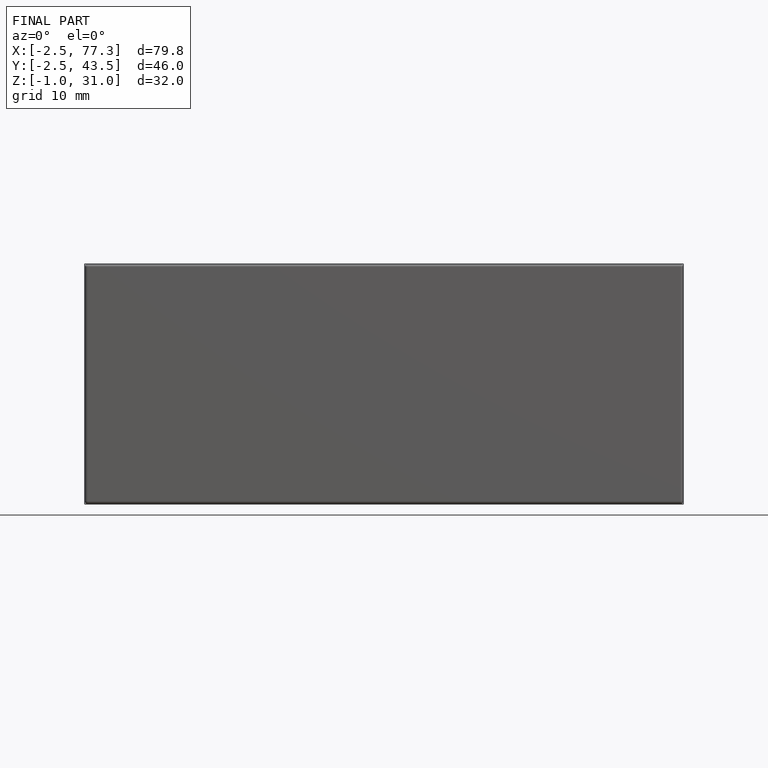
[diagram: finished part — front view with bounding-box wireframe]
